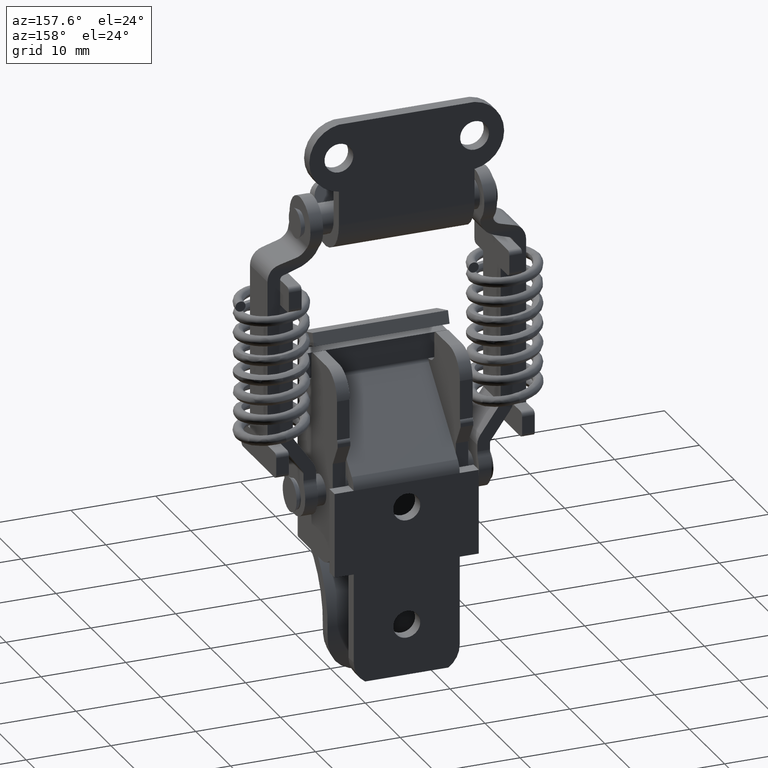
[diagram: clean part render]
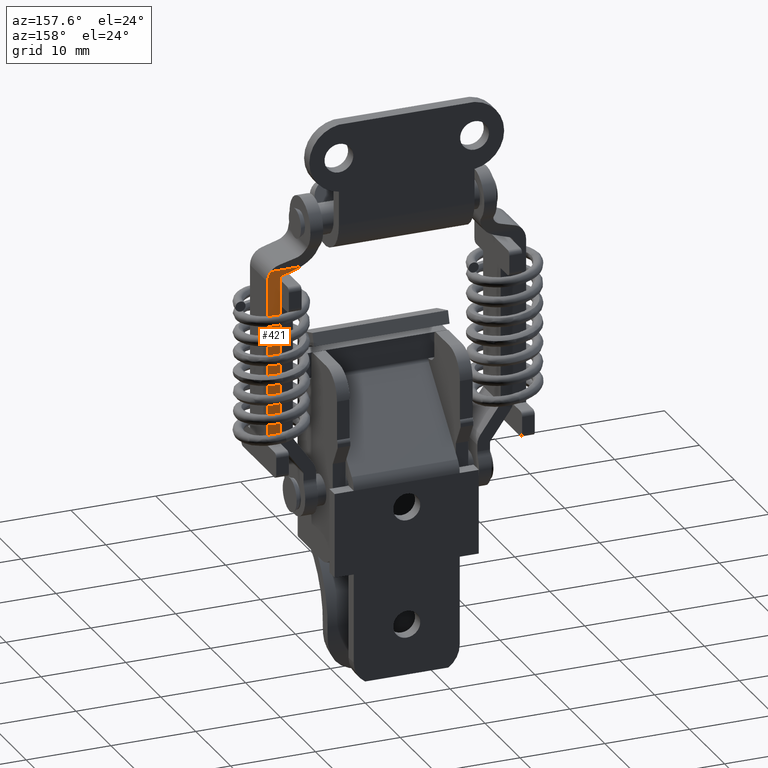
[diagram: same view with one face highlighted and labeled with its STEP entity id]
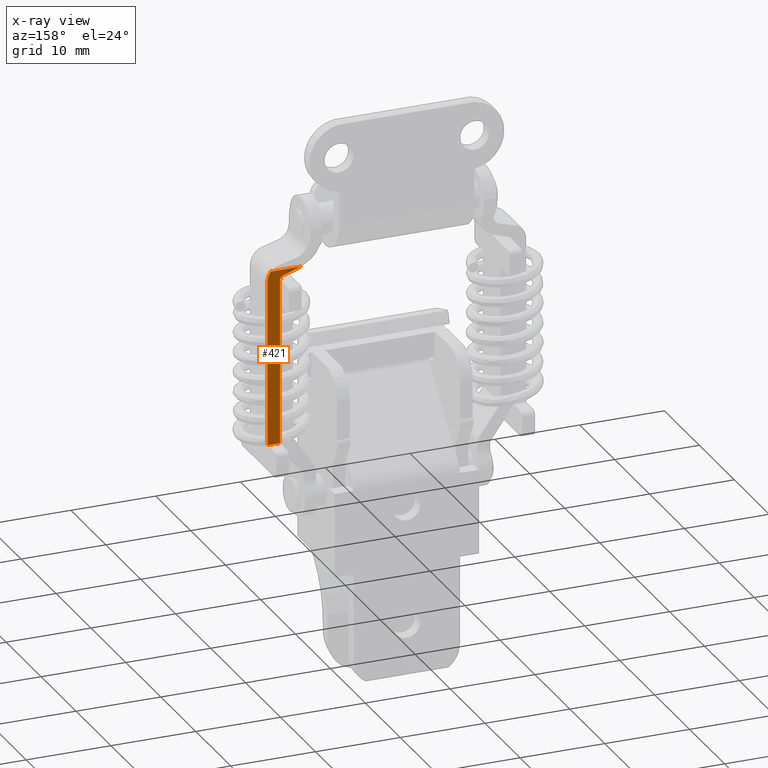
[diagram: x-ray of the same camera — body ghosted, the highlighted face saturated]
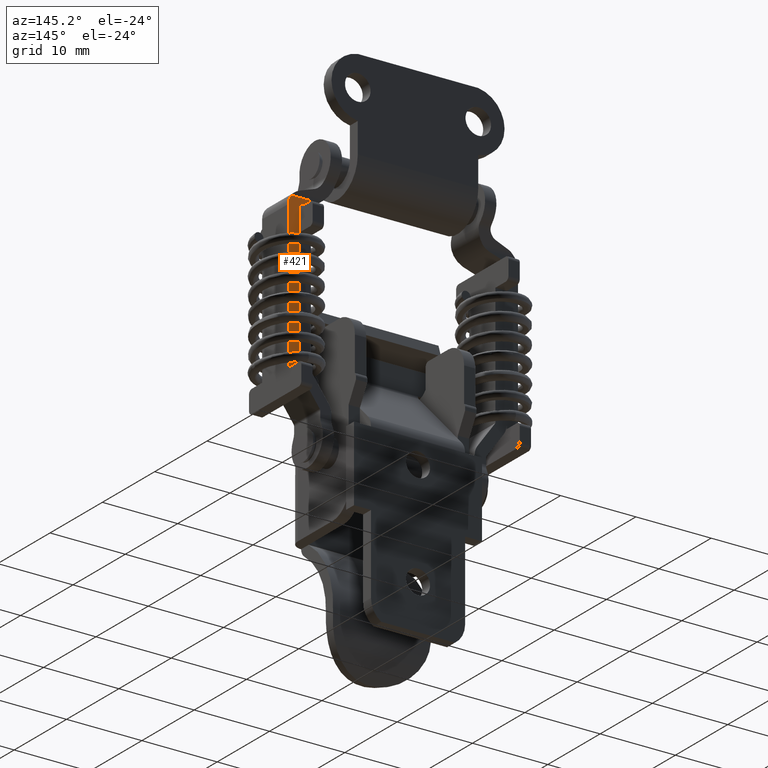
[diagram: same view with one face highlighted and labeled with its STEP entity id]
A machine part, auxiliary view. The second image highlights one B-rep face of the part: STEP entity #421.
The next image is the same camera in x-ray: the body ghosted, the highlighted face saturated — about 0% of this face is hidden behind the body in this view.
A second angle (auxiliary view) of the same face is appended — the face is thin or edge-on in the first view.
In plain terms, the highlighted planar face has unit normal (0, 1, 0).
Its self-contained STEP definition (entity closure, byte-faithful):
#421=ADVANCED_FACE('',(#2042),#2041,.T.);
#2041=PLANE('',#6056);
#2042=FACE_OUTER_BOUND('',#6057,.T.);
#6053=CARTESIAN_POINT('',(-1.00001091996E+00,2.24801335924E+01,-2.75673475948E+01));
#6054=DIRECTION('',(-1.00000000000E+00,0.00000000000E+00,-1.05446237564E-12));
#6055=DIRECTION('',(-1.05446237564E-12,0.00000000000E+00,1.00000000000E+00));
#6056=AXIS2_PLACEMENT_3D('',#6053,#6054,#6055);
#6057=EDGE_LOOP('',(#7333,#7334,#7335,#7336,#7337,#7338,#7339,#7340));
#7333=ORIENTED_EDGE('',*,*,#8101,.F.);
#7334=ORIENTED_EDGE('',*,*,#8226,.T.);
#7335=ORIENTED_EDGE('',*,*,#8262,.F.);
#7336=ORIENTED_EDGE('',*,*,#8203,.F.);
#7337=ORIENTED_EDGE('',*,*,#8215,.T.);
#7338=ORIENTED_EDGE('',*,*,#8227,.F.);
#7339=ORIENTED_EDGE('',*,*,#8110,.F.);
#7340=ORIENTED_EDGE('',*,*,#8108,.T.);
#8101=EDGE_CURVE('',#10356,#10357,#10358,.T.);
#8108=EDGE_CURVE('',#10404,#10357,#10405,.T.);
#8110=EDGE_CURVE('',#10404,#10417,#10418,.T.);
#8203=EDGE_CURVE('',#11035,#11042,#11043,.T.);
#8215=EDGE_CURVE('',#11035,#11118,#11125,.T.);
#8226=EDGE_CURVE('',#10356,#11194,#11201,.T.);
#8227=EDGE_CURVE('',#10417,#11118,#11207,.T.);
#8262=EDGE_CURVE('',#11042,#11194,#11435,.T.);
#10356=VERTEX_POINT('',#14317);
#10357=VERTEX_POINT('',#14318);
#10358=CIRCLE('',#14322,2.00000000000E+00);
#10404=VERTEX_POINT('',#14349);
#10405=LINE('',#14350,#14351);
#10417=VERTEX_POINT('',#14359);
#10418=CIRCLE('',#14363,3.00000000000E+00);
#11035=VERTEX_POINT('',#14761);
#11042=VERTEX_POINT('',#14765);
#11043=LINE('',#14766,#14767);
#11118=VERTEX_POINT('',#14813);
#11125=CIRCLE('',#14820,5.00000000000E-01);
#11194=VERTEX_POINT('',#14861);
#11201=LINE('',#14865,#14866);
#11207=LINE('',#14868,#14869);
#11435=LINE('',#15004,#15005);
#14317=CARTESIAN_POINT('',(-1.00001091999E+00,2.68500000000E+01,-6.00633180821E+00));
#14318=CARTESIAN_POINT('',(-1.00001091999E+00,2.64649469522E+01,-4.82652405202E+00));
#14319=CARTESIAN_POINT('',(-1.00001091999E+00,2.48500000000E+01,-6.00633180821E+00));
#14320=DIRECTION('',(1.00000000000E+00,0.00000000000E+00,1.05446237564E-12));
#14321=DIRECTION('',(1.05446237564E-12,-0.00000000000E+00,-1.00000000000E+00));
#14322=AXIS2_PLACEMENT_3D('',#14319,#14320,#14321);
#14349=CARTESIAN_POINT('',(-1.00001091999E+00,2.28773941749E+01,-4.82652405202E+00));
#14350=CARTESIAN_POINT('',(-1.00001091999E+00,2.28773941749E+01,-4.82652405202E+00));
#14351=VECTOR('',#14352,3.58755277733E+00);
#14352=DIRECTION('',(0.00000000000E+00,1.00000000000E+00,0.00000000000E+00));
#14359=CARTESIAN_POINT('',(-1.00001091999E+00,2.31792121376E+01,-4.94215262162E+00));
#14360=CARTESIAN_POINT('',(-1.00001091999E+00,2.41000000000E+01,-2.08695565602E+00));
#14361=DIRECTION('',(1.00000000000E+00,0.00000000000E+00,1.05446237564E-12));
#14362=DIRECTION('',(1.05446237564E-12,-0.00000000000E+00,-1.00000000000E+00));
#14363=AXIS2_PLACEMENT_3D('',#14360,#14361,#14362);
#14761=CARTESIAN_POINT('',(-1.00001091999E+00,2.53500000000E+01,-6.00633180821E+00));
#14765=CARTESIAN_POINT('',(-1.00001091997E+00,2.53500000000E+01,-2.55000000000E+01));
#14766=CARTESIAN_POINT('',(-1.00001091999E+00,2.53500000000E+01,-6.00633180821E+00));
#14767=VECTOR('',#14768,1.94936681918E+01);
#14768=DIRECTION('',(1.05446214686E-12,0.00000000000E+00,-1.00000000000E+00));
#14813=CARTESIAN_POINT('',(-1.00001091999E+00,2.50034646437E+01,-5.53046564728E+00));
#14817=CARTESIAN_POINT('',(-1.00001091999E+00,2.48500000000E+01,-6.00633180821E+00));
#14818=DIRECTION('',(1.00000000000E+00,0.00000000000E+00,1.05446237564E-12));
#14819=DIRECTION('',(1.05446237564E-12,-0.00000000000E+00,-1.00000000000E+00));
#14820=AXIS2_PLACEMENT_3D('',#14817,#14818,#14819);
#14861=CARTESIAN_POINT('',(-1.00001091997E+00,2.68500000000E+01,-2.55000000000E+01));
#14865=CARTESIAN_POINT('',(-1.00001091999E+00,2.68500000000E+01,-6.00633180821E+00));
#14866=VECTOR('',#14867,1.94936681918E+01);
#14867=DIRECTION('',(1.05446214686E-12,0.00000000000E+00,-1.00000000000E+00));
#14868=CARTESIAN_POINT('',(-1.00001091999E+00,2.31792121376E+01,-4.94215262162E+00));
#14869=VECTOR('',#14870,1.91677057114E+00);
#14870=DIRECTION('',(3.23665563057E-13,9.51732321869E-01,-3.06929287475E-01));
#15004=CARTESIAN_POINT('',(-1.00001091997E+00,2.53500000000E+01,-2.55000000000E+01));
#15005=VECTOR('',#15006,1.50000000000E+00);
#15006=DIRECTION('',(0.00000000000E+00,1.00000000000E+00,0.00000000000E+00));